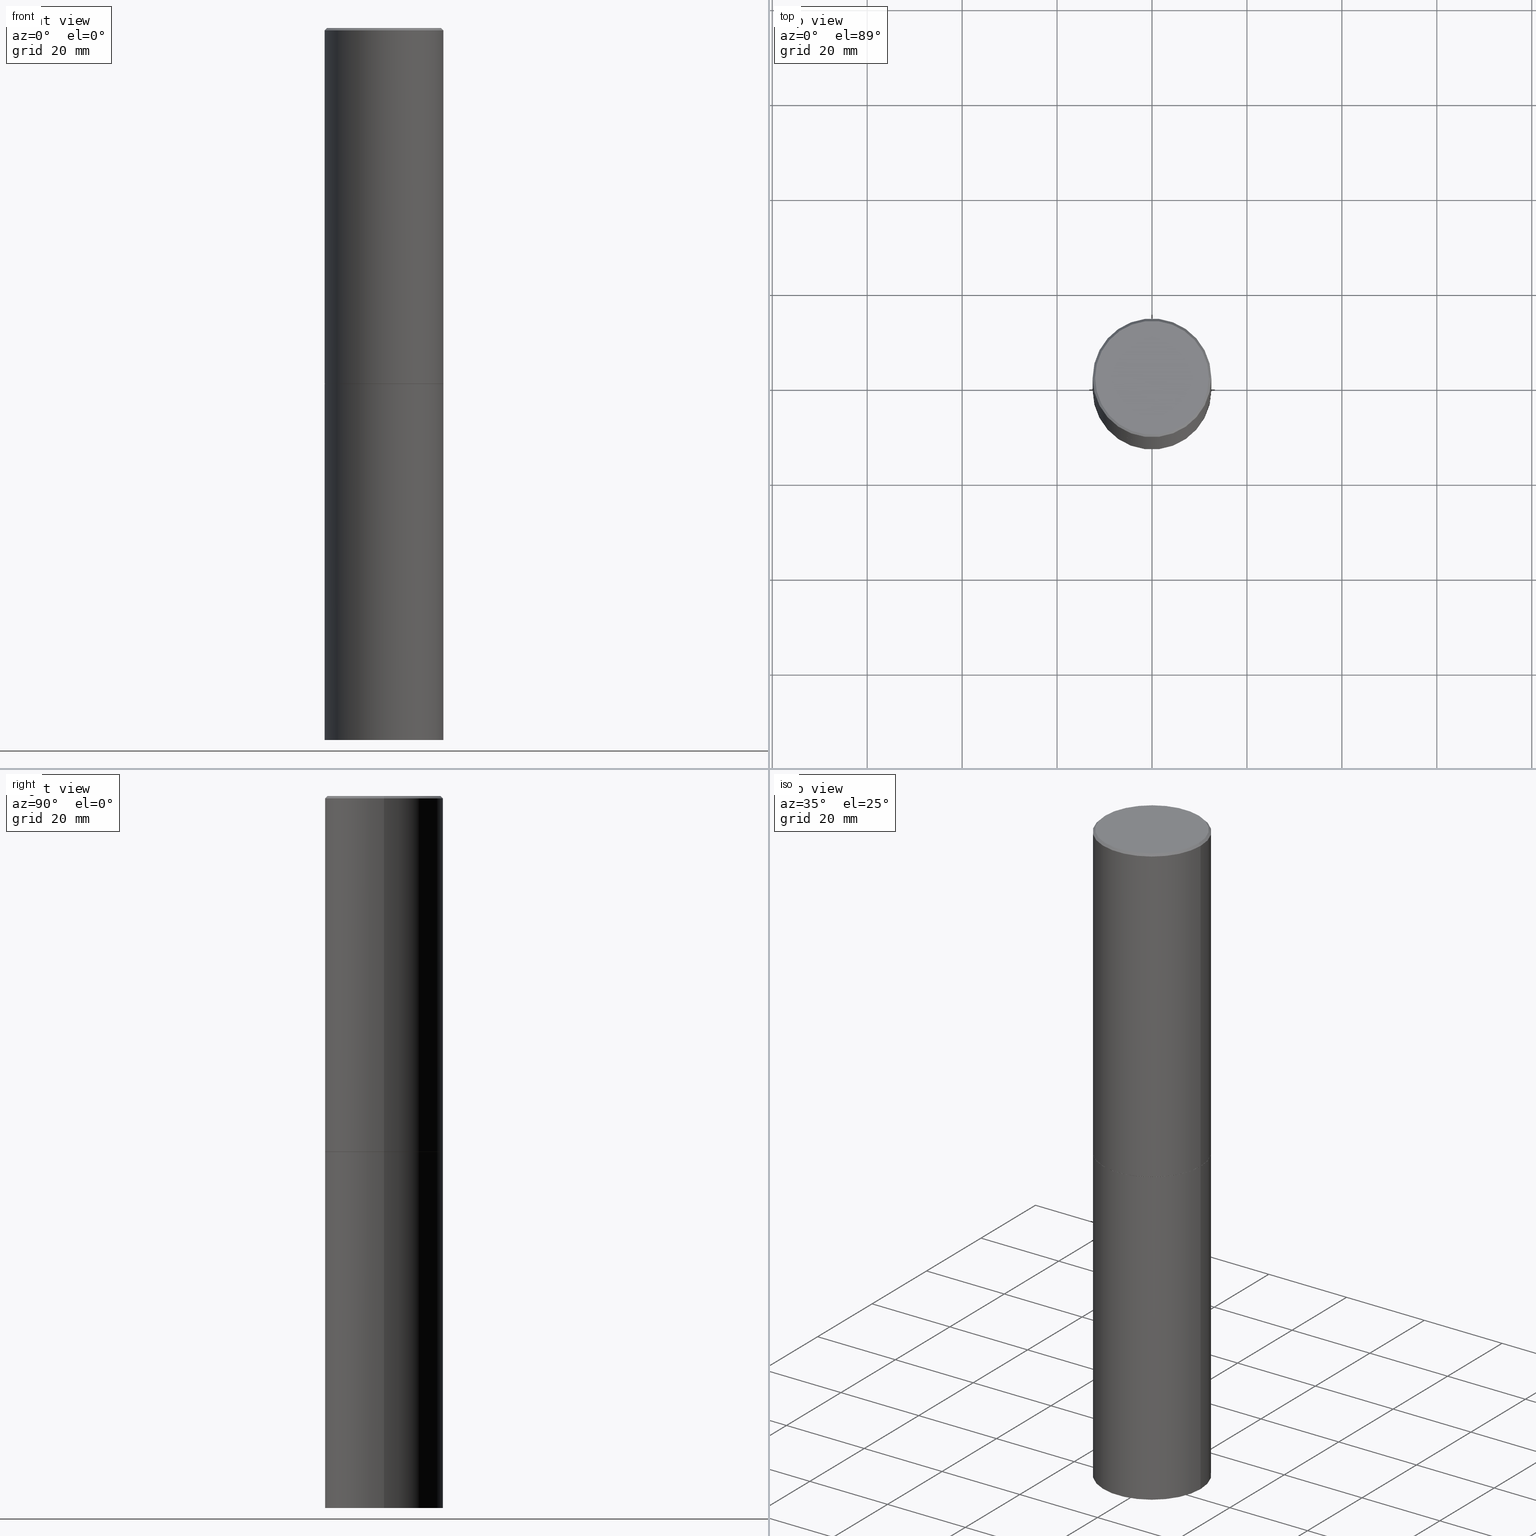
[diagram: canonical four-view strip — front | top / right | iso, engineering-drawing reading convention]
A machine part, canonical four-view strip (front | top / right | iso — engineering-drawing reading convention). The complete STEP part file that produces these views, byte-faithful:
ISO-10303-21;
HEADER;
FILE_DESCRIPTION (( 'STEP AP203' ),
    '1' );
FILE_NAME ('49491.STEP',
    '2024-02-28T23:58:51',
    ( '' ),
    ( '' ),
    'SwSTEP 2.0',
    'SolidWorks 2023',
    '' );
FILE_SCHEMA (( 'CONFIG_CONTROL_DESIGN' ));
ENDSEC;

DATA;
#1 = DATE_AND_TIME ( #118, #262 ) ;
#2 = LINE ( 'NONE', #115, #89 ) ;
#3 = EDGE_CURVE ( 'NONE', #273, #243, #59, .T. ) ;
#4 = AXIS2_PLACEMENT_3D ( 'NONE', #67, #230, #348 ) ;
#5 = CARTESIAN_POINT ( 'NONE',  ( -0.4911499999999999755, -6.819466302516424705E-15, -2.952700000000000546 ) ) ;
#6 = VERTEX_POINT ( 'NONE', #60 ) ;
#7 = ORIENTED_EDGE ( 'NONE', *, *, #357, .F. ) ;
#8 = AXIS2_PLACEMENT_3D ( 'NONE', #260, #353, #42 ) ;
#9 = CARTESIAN_POINT ( 'NONE',  ( 0.4921499999999999764, -1.374596203102545079E-14, -2.952700000000000102 ) ) ;
#10 = LOCAL_TIME ( 18, 58, 51.00000000000000000, #166 ) ;
#11 = DIRECTION ( 'NONE',  ( 2.445468806185136597E-29, -3.491481338843145583E-15, -1.000000000000000000 ) ) ;
#12 = MANIFOLD_SOLID_BREP ( 'Body-Move/Copy2[2]', #88 ) ;
#13 = PERSON ( 'UNSPECIFIED', 'UNSPECIFIED', 'UNSPECIFIED', ('UNSPECIFIED'), ('UNSPECIFIED'), ('UNSPECIFIED') ) ;
#14 = ADVANCED_FACE ( 'NONE', ( #87 ), #285, .T. ) ;
#15 = DIRECTION ( 'NONE',  ( 2.438088387897960049E-29, -3.491481338843145188E-15, -1.000000000000000000 ) ) ;
#16 = FACE_OUTER_BOUND ( 'NONE', #19, .T. ) ;
#17 = VECTOR ( 'NONE', #18, 39.37007874015748143 ) ;
#18 = DIRECTION ( 'NONE',  ( -2.445468806185136877E-29, 3.491481338843145188E-15, 1.000000000000000000 ) ) ;
#19 = EDGE_LOOP ( 'NONE', ( #170, #50, #286, #362 ) ) ;
#20 = EDGE_CURVE ( 'NONE', #224, #327, #103, .T. ) ;
#21 = LINE ( 'NONE', #198, #239 ) ;
#22 = ORIENTED_EDGE ( 'NONE', *, *, #351, .T. ) ;
#23 = AXIS2_PLACEMENT_3D ( 'NONE', #225, #119, #228 ) ;
#24 = APPLICATION_CONTEXT ( 'configuration controlled 3d designs of mechanical parts and assemblies' ) ;
#25 = PERSON_AND_ORGANIZATION_ROLE ( 'creator' ) ;
#26 = ORIENTED_EDGE ( 'NONE', *, *, #99, .F. ) ;
#27 = EDGE_CURVE ( 'NONE', #6, #298, #132, .T. ) ;
#28 = DATE_AND_TIME ( #274, #10 ) ;
#29 = EDGE_LOOP ( 'NONE', ( #150, #131 ) ) ;
#30 = ORIENTED_EDGE ( 'NONE', *, *, #27, .T. ) ;
#31 = CIRCLE ( 'NONE', #231, 0.4921499999999999764 ) ;
#32 = CONICAL_SURFACE ( 'NONE', #183, 0.4911499999999999755, 0.7853981633972775267 ) ;
#33 = CARTESIAN_POINT ( 'NONE',  ( -0.4921499999999999764, -1.690881473276754954E-15, -2.951700000000000212 ) ) ;
#34 = DIRECTION ( 'NONE',  ( -2.445468806185136597E-29, 3.491481338843145583E-15, 1.000000000000000000 ) ) ;
#35 = DIRECTION ( 'NONE',  ( 1.000000000000000000, -6.982962677686265922E-15, 0.000000000000000000 ) ) ;
#36 = DESIGN_CONTEXT ( 'detailed design', #24, 'design' ) ;
#37 = PERSON_AND_ORGANIZATION ( #13, #189 ) ;
#38 = CARTESIAN_POINT ( 'NONE',  ( 0.000000000000000000, 0.000000000000000000, 0.000000000000000000 ) ) ;
#39 = DIRECTION ( 'NONE',  ( 1.000000000000000000, -6.982962677686264344E-15, 0.000000000000000000 ) ) ;
#40 = DIRECTION ( 'NONE',  ( 1.000000000000000000, -6.982962677686265922E-15, 0.000000000000000000 ) ) ;
#41 = VECTOR ( 'NONE', #56, 39.37007874015748143 ) ;
#42 = DIRECTION ( 'NONE',  ( -1.000000000000000000, 6.982962677686265922E-15, 0.000000000000000000 ) ) ;
#43 = APPROVAL_PERSON_ORGANIZATION ( #81, #251, #52 ) ;
#44 = CARTESIAN_POINT ( 'NONE',  ( -0.4921499999999999764, 3.496936074043332897E-15, -2.420853904668951509E-29 ) ) ;
#45 = CYLINDRICAL_SURFACE ( 'NONE', #156, 0.4921499999999999764 ) ;
#46 = CARTESIAN_POINT ( 'NONE',  ( 0.4721499999999996255, -3.342703923013973396E-15, 8.537024980224040028E-18 ) ) ;
#47 = EDGE_LOOP ( 'NONE', ( #343, #22, #366, #199 ) ) ;
#48 = APPLICATION_PROTOCOL_DEFINITION ( 'international standard', 'config_control_design', 1994, #24 ) ;
#49 = PERSON_AND_ORGANIZATION ( #13, #189 ) ;
#50 = ORIENTED_EDGE ( 'NONE', *, *, #347, .T. ) ;
#51 = CIRCLE ( 'NONE', #294, 0.4921499999999999764 ) ;
#52 = APPROVAL_ROLE ( '' ) ;
#53 = ORIENTED_EDGE ( 'NONE', *, *, #312, .T. ) ;
#54 = CARTESIAN_POINT ( 'NONE',  ( 0.000000000000000000, 0.000000000000000000, 0.000000000000000000 ) ) ;
#55 = VERTEX_POINT ( 'NONE', #151 ) ;
#56 = DIRECTION ( 'NONE',  ( -0.7071067811864267805, 7.493145998869918709E-15, 0.7071067811866682540 ) ) ;
#57 = AXIS2_PLACEMENT_3D ( 'NONE', #72, #187, #71 ) ;
#58 = AXIS2_PLACEMENT_3D ( 'NONE', #180, #287, #40 ) ;
#59 = CIRCLE ( 'NONE', #202, 0.4921499999999999764 ) ;
#60 = CARTESIAN_POINT ( 'NONE',  ( -0.4921499999999996988, 3.366835455046430506E-15, -0.02000000000000010797 ) ) ;
#61 = ADVANCED_FACE ( 'NONE', ( #205 ), #338, .T. ) ;
#62 = CARTESIAN_POINT ( 'NONE',  ( 1.444171603492632270E-28, -2.061894304653819197E-14, -5.905499999999999972 ) ) ;
#63 = PERSON_AND_ORGANIZATION ( #13, #189 ) ;
#64 = DIRECTION ( 'NONE',  ( -2.445468806185136877E-29, 3.491481338843145188E-15, 1.000000000000000000 ) ) ;
#65 =( GEOMETRIC_REPRESENTATION_CONTEXT ( 3 ) GLOBAL_UNCERTAINTY_ASSIGNED_CONTEXT ( ( #264 ) ) GLOBAL_UNIT_ASSIGNED_CONTEXT ( ( #330, #360, #363 ) ) REPRESENTATION_CONTEXT ( 'NONE', 'WORKASPACE' ) );
#66 = DIRECTION ( 'NONE',  ( -2.445468806185136597E-29, 3.491481338843145583E-15, 1.000000000000000000 ) ) ;
#67 = CARTESIAN_POINT ( 'NONE',  ( 4.890937612370299433E-31, -6.982962677686328587E-17, -0.02000000000000010797 ) ) ;
#68 = DIRECTION ( 'NONE',  ( -2.445468806185136597E-29, 3.491481338843145583E-15, 1.000000000000000000 ) ) ;
#69 = CARTESIAN_POINT ( 'NONE',  ( 3.436665081823440533E-15, 0.4921499999999793262, -5.905500000000001748 ) ) ;
#70 = ADVANCED_FACE ( 'NONE', ( #252 ), #306, .T. ) ;
#71 = DIRECTION ( 'NONE',  ( 1.000000000000000000, -6.982962677686264344E-15, 0.000000000000000000 ) ) ;
#72 = CARTESIAN_POINT ( 'NONE',  ( 7.220735744022853640E-29, -1.030929694920215659E-14, -2.952700000000000546 ) ) ;
#73 = EDGE_LOOP ( 'NONE', ( #109, #110, #219, #301 ) ) ;
#74 = LOCAL_TIME ( 18, 58, 51.00000000000000000, #216 ) ;
#75 = AXIS2_PLACEMENT_3D ( 'NONE', #147, #313, #223 ) ;
#76 = PERSON_AND_ORGANIZATION_ROLE ( 'design_owner' ) ;
#77 = DIMENSIONAL_EXPONENTS ( 1.000000000000000000, 0.000000000000000000, 0.000000000000000000, 0.000000000000000000, 0.000000000000000000, 0.000000000000000000, 0.000000000000000000 ) ;
#78 = ORIENTED_EDGE ( 'NONE', *, *, #112, .T. ) ;
#79 = DATE_AND_TIME ( #328, #74 ) ;
#80 = EDGE_CURVE ( 'NONE', #327, #111, #144, .T. ) ;
#81 = PERSON_AND_ORGANIZATION ( #13, #189 ) ;
#82 = ORIENTED_EDGE ( 'NONE', *, *, #20, .F. ) ;
#83 = LINE ( 'NONE', #326, #17 ) ;
#84 = ORIENTED_EDGE ( 'NONE', *, *, #284, .F. ) ;
#85 = SHAPE_DEFINITION_REPRESENTATION ( #91, #236 ) ;
#86 = CARTESIAN_POINT ( 'NONE',  ( 4.890937612370299433E-31, -6.982962677686328587E-17, -0.02000000000000010797 ) ) ;
#87 = FACE_OUTER_BOUND ( 'NONE', #221, .T. ) ;
#88 = CLOSED_SHELL ( 'NONE', ( #193, #61, #185, #168, #70, #302, #229, #335 ) ) ;
#89 = VECTOR ( 'NONE', #90, 39.37007874015748143 ) ;
#90 = DIRECTION ( 'NONE',  ( -0.7071067811865465735, 2.468850131082246805E-15, -0.7071067811865484609 ) ) ;
#91 = PRODUCT_DEFINITION_SHAPE ( 'NONE', 'NONE',  #299 ) ;
#92 = CC_DESIGN_PERSON_AND_ORGANIZATION_ASSIGNMENT ( #37, #342, ( #272 ) ) ;
#93 = ORIENTED_EDGE ( 'NONE', *, *, #312, .F. ) ;
#94 = VERTEX_POINT ( 'NONE', #279 ) ;
#95 = CARTESIAN_POINT ( 'NONE',  ( 7.218290275216666916E-29, -1.030580546786331359E-14, -2.951700000000000212 ) ) ;
#96 = DIRECTION ( 'NONE',  ( 1.000000000000000000, -6.982962677686265922E-15, 4.876176775795935793E-29 ) ) ;
#97 = DIRECTION ( 'NONE',  ( -2.445468806185136597E-29, 3.491481338843145583E-15, 1.000000000000000000 ) ) ;
#98 = DIRECTION ( 'NONE',  ( -2.445468806185136597E-29, 3.491481338843145583E-15, 1.000000000000000000 ) ) ;
#99 = EDGE_CURVE ( 'NONE', #94, #6, #2, .T. ) ;
#100 = DIRECTION ( 'NONE',  ( 1.000000000000000000, -6.982962677686265922E-15, 4.876176775795935793E-29 ) ) ;
#101 = FACE_OUTER_BOUND ( 'NONE', #178, .T. ) ;
#102 = PERSON_AND_ORGANIZATION ( #13, #189 ) ;
#103 = CIRCLE ( 'NONE', #344, 0.4911499999999999755 ) ;
#104 = ORIENTED_EDGE ( 'NONE', *, *, #347, .F. ) ;
#105 = CC_DESIGN_APPROVAL ( #325, ( #272 ) ) ;
#106 = MECHANICAL_CONTEXT ( 'NONE', #194, 'mechanical' ) ;
#107 = VERTEX_POINT ( 'NONE', #340 ) ;
#108 = CALENDAR_DATE ( 2024, 28, 2 ) ;
#109 = ORIENTED_EDGE ( 'NONE', *, *, #351, .F. ) ;
#110 = ORIENTED_EDGE ( 'NONE', *, *, #210, .T. ) ;
#111 = VERTEX_POINT ( 'NONE', #33 ) ;
#112 = EDGE_CURVE ( 'NONE', #196, #298, #258, .T. ) ;
#113 = PERSON_AND_ORGANIZATION_ROLE ( 'design_supplier' ) ;
#114 = DIRECTION ( 'NONE',  ( -2.445468806185136597E-29, 3.491481338843145583E-15, 1.000000000000000000 ) ) ;
#115 = CARTESIAN_POINT ( 'NONE',  ( -0.4921499999999996988, 3.366835455046430506E-15, -0.02000000000000010797 ) ) ;
#116 = AXIS2_PLACEMENT_3D ( 'NONE', #214, #192, #163 ) ;
#117 = FACE_OUTER_BOUND ( 'NONE', #29, .T. ) ;
#118 = CALENDAR_DATE ( 2024, 28, 2 ) ;
#119 = DIRECTION ( 'NONE',  ( 2.438088387897960049E-29, -3.491481338843145188E-15, -1.000000000000000000 ) ) ;
#120 = LINE ( 'NONE', #44, #310 ) ;
#121 = CIRCLE ( 'NONE', #148, 0.4721499999999996255 ) ;
#122 = LOCAL_TIME ( 18, 58, 51.00000000000000000, #134 ) ;
#123 = CARTESIAN_POINT ( 'NONE',  ( 0.000000000000000000, 0.000000000000000000, 0.000000000000000000 ) ) ;
#124 = EDGE_CURVE ( 'NONE', #268, #298, #206, .T. ) ;
#125 = DIRECTION ( 'NONE',  ( 1.000000000000000000, -6.982962677686265922E-15, 0.000000000000000000 ) ) ;
#126 = PRODUCT_RELATED_PRODUCT_CATEGORY ( 'detail', '', ( #203 ) ) ;
#127 = CARTESIAN_POINT ( 'NONE',  ( 0.4921499999999996988, -3.446223716380120377E-15, -0.02000000000000010797 ) ) ;
#128 = APPROVAL_PERSON_ORGANIZATION ( #276, #325, #336 ) ;
#129 = CARTESIAN_POINT ( 'NONE',  ( -2.087702828670439639E-46, 2.980686340760894400E-32, 8.537024980200822558E-18 ) ) ;
#130 = PLANE ( 'NONE',  #346 ) ;
#131 = ORIENTED_EDGE ( 'NONE', *, *, #284, .T. ) ;
#132 = CIRCLE ( 'NONE', #339, 0.4921499999999996988 ) ;
#133 = ORIENTED_EDGE ( 'NONE', *, *, #145, .T. ) ;
#134 = COORDINATED_UNIVERSAL_TIME_OFFSET ( 5, 0, .BEHIND. ) ;
#135 = DIRECTION ( 'NONE',  ( 1.000000000000000000, 0.000000000000000000, 0.000000000000000000 ) ) ;
#136 = CC_DESIGN_PERSON_AND_ORGANIZATION_ASSIGNMENT ( #63, #308, ( #352 ) ) ;
#137 = ORIENTED_EDGE ( 'NONE', *, *, #197, .T. ) ;
#138 = EDGE_LOOP ( 'NONE', ( #82, #104 ) ) ;
#139 = AXIS2_PLACEMENT_3D ( 'NONE', #263, #68, #288 ) ;
#140 = CIRCLE ( 'NONE', #324, 0.4921499999999999764 ) ;
#141 = PERSON_AND_ORGANIZATION ( #13, #189 ) ;
#142 = CARTESIAN_POINT ( 'NONE',  ( 0.4921499999999996988, -3.446223716380120377E-15, -0.02000000000000010797 ) ) ;
#143 = MANIFOLD_SOLID_BREP ( 'Body-Move/Copy2[1]', #271 ) ;
#144 = LINE ( 'NONE', #5, #41 ) ;
#145 = EDGE_CURVE ( 'NONE', #55, #107, #140, .T. ) ;
#146 = DATE_AND_TIME ( #222, #213 ) ;
#147 = CARTESIAN_POINT ( 'NONE',  ( 0.000000000000000000, 0.000000000000000000, 0.000000000000000000 ) ) ;
#148 = AXIS2_PLACEMENT_3D ( 'NONE', #129, #240, #315 ) ;
#149 = COORDINATED_UNIVERSAL_TIME_OFFSET ( 5, 0, .BEHIND. ) ;
#150 = ORIENTED_EDGE ( 'NONE', *, *, #3, .T. ) ;
#151 = CARTESIAN_POINT ( 'NONE',  ( -0.4921499999999999764, -1.196718392382684217E-14, -5.905499999999999972 ) ) ;
#152 = CC_DESIGN_DATE_AND_TIME_ASSIGNMENT ( #1, #227, ( #272 ) ) ;
#153 = CARTESIAN_POINT ( 'NONE',  ( 4.890937612370299433E-31, -6.982962677686328587E-17, -0.02000000000000010797 ) ) ;
#154 = CIRCLE ( 'NONE', #4, 0.4921499999999996988 ) ;
#155 = DIRECTION ( 'NONE',  ( -2.445468806185136597E-29, 3.491481338843145583E-15, 1.000000000000000000 ) ) ;
#156 = AXIS2_PLACEMENT_3D ( 'NONE', #123, #97, #100 ) ;
#157 = ADVANCED_FACE ( 'NONE', ( #117 ), #176, .F. ) ;
#158 = DIRECTION ( 'NONE',  ( 1.000000000000000000, -6.982962677686265922E-15, 0.000000000000000000 ) ) ;
#159 = FACE_OUTER_BOUND ( 'NONE', #247, .T. ) ;
#160 = DIRECTION ( 'NONE',  ( -2.445468806185136597E-29, 3.491481338843145583E-15, 1.000000000000000000 ) ) ;
#161 = ORIENTED_EDGE ( 'NONE', *, *, #80, .T. ) ;
#162 = PERSON_AND_ORGANIZATION ( #13, #189 ) ;
#163 = DIRECTION ( 'NONE',  ( 1.000000000000000000, -6.982962677686264344E-15, 0.000000000000000000 ) ) ;
#164 = ORIENTED_EDGE ( 'NONE', *, *, #179, .F. ) ;
#165 = CC_DESIGN_PERSON_AND_ORGANIZATION_ASSIGNMENT ( #141, #113, ( #352 ) ) ;
#166 = COORDINATED_UNIVERSAL_TIME_OFFSET ( 5, 0, .BEHIND. ) ;
#167 = ORIENTED_EDGE ( 'NONE', *, *, #242, .F. ) ;
#168 = ADVANCED_FACE ( 'NONE', ( #317 ), #172, .T. ) ;
#169 = CARTESIAN_POINT ( 'NONE',  ( 3.297005828269567997E-15, 0.4721499999999996255, -1.644234401644689488E-15 ) ) ;
#170 = ORIENTED_EDGE ( 'NONE', *, *, #80, .F. ) ;
#171 = ORIENTED_EDGE ( 'NONE', *, *, #145, .F. ) ;
#172 = CONICAL_SURFACE ( 'NONE', #8, 0.4921499999999996988, 0.7853981633974469467 ) ;
#173 = DIRECTION ( 'NONE',  ( -2.445468806185136597E-29, 3.491481338843145583E-15, 1.000000000000000000 ) ) ;
#174 = DIRECTION ( 'NONE',  ( -2.445468806185136597E-29, 3.491481338843145583E-15, 1.000000000000000000 ) ) ;
#175 = APPROVAL_STATUS ( 'not_yet_approved' ) ;
#176 = PLANE ( 'NONE',  #23 ) ;
#177 = CIRCLE ( 'NONE', #58, 0.4921499999999999764 ) ;
#178 = EDGE_LOOP ( 'NONE', ( #275, #337 ) ) ;
#179 = EDGE_CURVE ( 'NONE', #224, #268, #293, .T. ) ;
#180 = CARTESIAN_POINT ( 'NONE',  ( 1.444171603492632270E-28, -2.061894304653819197E-14, -5.905499999999999972 ) ) ;
#181 = CARTESIAN_POINT ( 'NONE',  ( 7.218290275216666916E-29, -1.030580546786331359E-14, -2.951700000000000212 ) ) ;
#182 = VECTOR ( 'NONE', #204, 39.37007874015748143 ) ;
#183 = AXIS2_PLACEMENT_3D ( 'NONE', #350, #98, #207 ) ;
#184 = CARTESIAN_POINT ( 'NONE',  ( 0.4911499999999999755, -1.373897906834776478E-14, -2.952700000000000546 ) ) ;
#185 = ADVANCED_FACE ( 'NONE', ( #320 ), #261, .T. ) ;
#186 = CARTESIAN_POINT ( 'NONE',  ( 7.220735744022853640E-29, -1.030929694920215659E-14, -2.952700000000000546 ) ) ;
#187 = DIRECTION ( 'NONE',  ( -2.445468806185136597E-29, 3.491481338843145583E-15, 1.000000000000000000 ) ) ;
#188 = CIRCLE ( 'NONE', #256, 0.4921499999999999764 ) ;
#189 = ORGANIZATION ( 'UNSPECIFIED', 'UNSPECIFIED', '' ) ;
#190 = AXIS2_PLACEMENT_3D ( 'NONE', #69, #15, #212 ) ;
#191 = EDGE_LOOP ( 'NONE', ( #53, #329, #359, #7 ) ) ;
#192 = DIRECTION ( 'NONE',  ( -2.445468806185136597E-29, 3.491481338843145583E-15, 1.000000000000000000 ) ) ;
#193 = ADVANCED_FACE ( 'NONE', ( #316 ), #296, .T. ) ;
#194 = APPLICATION_CONTEXT ( 'configuration controlled 3d designs of mechanical parts and assemblies' ) ;
#195 = APPROVAL_STATUS ( 'not_yet_approved' ) ;
#196 = VERTEX_POINT ( 'NONE', #46 ) ;
#197 = EDGE_CURVE ( 'NONE', #298, #6, #154, .T. ) ;
#198 = CARTESIAN_POINT ( 'NONE',  ( 0.4921499999999999764, -3.436665081823295777E-15, 2.399810400207969603E-29 ) ) ;
#199 = ORIENTED_EDGE ( 'NONE', *, *, #124, .F. ) ;
#200 = EDGE_LOOP ( 'NONE', ( #277, #78, #137, #26 ) ) ;
#201 = CARTESIAN_POINT ( 'NONE',  ( 0.000000000000000000, 0.000000000000000000, 0.000000000000000000 ) ) ;
#202 = AXIS2_PLACEMENT_3D ( 'NONE', #253, #314, #35 ) ;
#203 = PRODUCT ( '49491', '49491', '', ( #106 ) ) ;
#204 = DIRECTION ( 'NONE',  ( 0.7071067811865465735, -7.319954787623252890E-15, -0.7071067811865484609 ) ) ;
#205 = FACE_OUTER_BOUND ( 'NONE', #47, .T. ) ;
#206 = LINE ( 'NONE', #311, #280 ) ;
#207 = DIRECTION ( 'NONE',  ( 1.000000000000000000, -6.982962677686264344E-15, 0.000000000000000000 ) ) ;
#208 = DIRECTION ( 'NONE',  ( -1.000000000000000000, 6.982962677686265922E-15, 0.000000000000000000 ) ) ;
#209 = CARTESIAN_POINT ( 'NONE',  ( 0.4921499999999999764, -1.374247054968660936E-14, -2.951700000000000212 ) ) ;
#210 = EDGE_CURVE ( 'NONE', #111, #268, #51, .T. ) ;
#211 = DIRECTION ( 'NONE',  ( -2.438088387897960049E-29, 3.491481338843145188E-15, 1.000000000000000000 ) ) ;
#212 = DIRECTION ( 'NONE',  ( -1.000000000000000000, 6.982962677686265922E-15, -4.876176775795935793E-29 ) ) ;
#213 = LOCAL_TIME ( 18, 58, 51.00000000000000000, #149 ) ;
#214 = CARTESIAN_POINT ( 'NONE',  ( 7.220735744022853640E-29, -1.030929694920215659E-14, -2.952700000000000546 ) ) ;
#215 = ORIENTED_EDGE ( 'NONE', *, *, #112, .F. ) ;
#216 = COORDINATED_UNIVERSAL_TIME_OFFSET ( 5, 0, .BEHIND. ) ;
#217 = EDGE_LOOP ( 'NONE', ( #215, #355, #309, #30 ) ) ;
#218 = DATE_TIME_ROLE ( 'creation_date' ) ;
#219 = ORIENTED_EDGE ( 'NONE', *, *, #124, .T. ) ;
#220 = APPROVAL_DATE_TIME ( #146, #325 ) ;
#221 = EDGE_LOOP ( 'NONE', ( #167, #133, #365, #84 ) ) ;
#222 = CALENDAR_DATE ( 2024, 28, 2 ) ;
#223 = DIRECTION ( 'NONE',  ( 1.000000000000000000, -6.982962677686265922E-15, 4.876176775795935793E-29 ) ) ;
#224 = VERTEX_POINT ( 'NONE', #184 ) ;
#225 = CARTESIAN_POINT ( 'NONE',  ( 3.436665081823367957E-15, 0.4921499999999896513, -2.952700000000001435 ) ) ;
#226 = EDGE_CURVE ( 'NONE', #196, #94, #244, .T. ) ;
#227 = DATE_TIME_ROLE ( 'classification_date' ) ;
#228 = DIRECTION ( 'NONE',  ( -1.000000000000000000, 6.982962677686265922E-15, -4.876176775795935793E-29 ) ) ;
#229 = ADVANCED_FACE ( 'NONE', ( #238 ), #265, .F. ) ;
#230 = DIRECTION ( 'NONE',  ( -2.445468806185136597E-29, 3.491481338843145583E-15, 1.000000000000000000 ) ) ;
#231 = AXIS2_PLACEMENT_3D ( 'NONE', #345, #234, #158 ) ;
#232 = AXIS2_PLACEMENT_3D ( 'NONE', #54, #241, #135 ) ;
#233 = AXIS2_PLACEMENT_3D ( 'NONE', #201, #66, #341 ) ;
#234 = DIRECTION ( 'NONE',  ( -2.445468806185136597E-29, 3.491481338843145583E-15, 1.000000000000000000 ) ) ;
#235 = DIRECTION ( 'NONE',  ( -2.445468806185136877E-29, 3.491481338843145188E-15, 1.000000000000000000 ) ) ;
#236 = ADVANCED_BREP_SHAPE_REPRESENTATION ( '49491', ( #143, #12, #232 ), #65 ) ;
#237 = EDGE_CURVE ( 'NONE', #268, #111, #188, .T. ) ;
#238 = FACE_OUTER_BOUND ( 'NONE', #138, .T. ) ;
#239 = VECTOR ( 'NONE', #245, 39.37007874015748143 ) ;
#240 = DIRECTION ( 'NONE',  ( -2.445468806185136597E-29, 3.491481338843145583E-15, 1.000000000000000000 ) ) ;
#241 = DIRECTION ( 'NONE',  ( 0.000000000000000000, 0.000000000000000000, 1.000000000000000000 ) ) ;
#242 = EDGE_CURVE ( 'NONE', #55, #243, #120, .T. ) ;
#243 = VERTEX_POINT ( 'NONE', #291 ) ;
#244 = CIRCLE ( 'NONE', #139, 0.4721499999999996255 ) ;
#245 = DIRECTION ( 'NONE',  ( -2.445468806185136877E-29, 3.491481338843145188E-15, 1.000000000000000000 ) ) ;
#246 = LENGTH_MEASURE_WITH_UNIT ( LENGTH_MEASURE( 0.02539999999999999897 ), #304 );
#247 = EDGE_LOOP ( 'NONE', ( #93, #171 ) ) ;
#248 = COORDINATED_UNIVERSAL_TIME_OFFSET ( 5, 0, .BEHIND. ) ;
#249 = APPROVAL_PERSON_ORGANIZATION ( #162, #270, #358 ) ;
#250 = EDGE_LOOP ( 'NONE', ( #334, #161, #331, #164 ) ) ;
#251 = APPROVAL ( #195, 'UNSPECIFIED' ) ;
#252 = FACE_OUTER_BOUND ( 'NONE', #73, .T. ) ;
#253 = CARTESIAN_POINT ( 'NONE',  ( 7.220735744022852519E-29, -1.030929694920215502E-14, -2.952700000000000102 ) ) ;
#254 = ADVANCED_FACE ( 'NONE', ( #349 ), #45, .T. ) ;
#255 = DIRECTION ( 'NONE',  ( 1.000000000000000000, -6.982962677686265922E-15, 0.000000000000000000 ) ) ;
#256 = AXIS2_PLACEMENT_3D ( 'NONE', #181, #155, #125 ) ;
#257 = SECURITY_CLASSIFICATION_LEVEL ( 'unclassified' ) ;
#258 = LINE ( 'NONE', #142, #182 ) ;
#259 = DIRECTION ( 'NONE',  ( 1.000000000000000000, -6.982962677686265922E-15, 4.876176775795935793E-29 ) ) ;
#260 = CARTESIAN_POINT ( 'NONE',  ( 4.890937612370299433E-31, -6.982962677686328587E-17, -0.02000000000000010797 ) ) ;
#261 = CONICAL_SURFACE ( 'NONE', #318, 0.4921499999999996988, 0.7853981633974469467 ) ;
#262 = LOCAL_TIME ( 18, 58, 51.00000000000000000, #248 ) ;
#263 = CARTESIAN_POINT ( 'NONE',  ( -2.087702828670439639E-46, 2.980686340760894400E-32, 8.537024980200822558E-18 ) ) ;
#264 = UNCERTAINTY_MEASURE_WITH_UNIT (LENGTH_MEASURE( 1.000000000000000082E-05 ), #330, 'distance_accuracy_value', 'NONE');
#265 = PLANE ( 'NONE',  #356 ) ;
#266 = PLANE ( 'NONE',  #190 ) ;
#267 = DIRECTION ( 'NONE',  ( 1.000000000000000000, -6.982962677686265922E-15, 0.000000000000000000 ) ) ;
#268 = VERTEX_POINT ( 'NONE', #209 ) ;
#269 = APPROVAL_STATUS ( 'not_yet_approved' ) ;
#270 = APPROVAL ( #269, 'UNSPECIFIED' ) ;
#271 = CLOSED_SHELL ( 'NONE', ( #254, #292, #157, #14 ) ) ;
#272 = SECURITY_CLASSIFICATION ( '', '', #257 ) ;
#273 = VERTEX_POINT ( 'NONE', #9 ) ;
#274 = CALENDAR_DATE ( 2024, 28, 2 ) ;
#275 = ORIENTED_EDGE ( 'NONE', *, *, #305, .T. ) ;
#276 = PERSON_AND_ORGANIZATION ( #13, #189 ) ;
#277 = ORIENTED_EDGE ( 'NONE', *, *, #226, .F. ) ;
#278 = CC_DESIGN_APPROVAL ( #270, ( #299 ) ) ;
#279 = CARTESIAN_POINT ( 'NONE',  ( -0.4721499999999996255, 3.331920641657999252E-15, 8.537024980177643606E-18 ) ) ;
#280 = VECTOR ( 'NONE', #64, 39.37007874015748143 ) ;
#281 = DIRECTION ( 'NONE',  ( 1.000000000000000000, -6.982962677686265922E-15, 0.000000000000000000 ) ) ;
#282 = CC_DESIGN_PERSON_AND_ORGANIZATION_ASSIGNMENT ( #102, #76, ( #203 ) ) ;
#283 = CARTESIAN_POINT ( 'NONE',  ( 7.220735744022853640E-29, -1.030929694920215659E-14, -2.952700000000000546 ) ) ;
#284 = EDGE_CURVE ( 'NONE', #243, #273, #31, .T. ) ;
#285 = CYLINDRICAL_SURFACE ( 'NONE', #233, 0.4921499999999999764 ) ;
#286 = ORIENTED_EDGE ( 'NONE', *, *, #179, .T. ) ;
#287 = DIRECTION ( 'NONE',  ( -2.445468806185136597E-29, 3.491481338843145583E-15, 1.000000000000000000 ) ) ;
#288 = DIRECTION ( 'NONE',  ( 1.000000000000000000, -6.982962677686265922E-15, 4.876006802227162976E-29 ) ) ;
#289 = DIRECTION ( 'NONE',  ( 0.7071067811864267805, -2.468850131080992517E-15, 0.7071067811866682540 ) ) ;
#290 = CC_DESIGN_DATE_AND_TIME_ASSIGNMENT ( #303, #218, ( #299 ) ) ;
#291 = CARTESIAN_POINT ( 'NONE',  ( -0.4921499999999999764, -1.196718392382684217E-14, -2.952700000000000102 ) ) ;
#292 = ADVANCED_FACE ( 'NONE', ( #159 ), #266, .T. ) ;
#293 = LINE ( 'NONE', #319, #322 ) ;
#294 = AXIS2_PLACEMENT_3D ( 'NONE', #95, #160, #267 ) ;
#295 = CIRCLE ( 'NONE', #116, 0.4911499999999999755 ) ;
#296 = CONICAL_SURFACE ( 'NONE', #57, 0.4911499999999999755, 0.7853981633972775267 ) ;
#297 = APPLICATION_PROTOCOL_DEFINITION ( 'international standard', 'config_control_design', 1994, #194 ) ;
#298 = VERTEX_POINT ( 'NONE', #127 ) ;
#299 = PRODUCT_DEFINITION ( 'UNKNOWN', '', #352, #36 ) ;
#300 = APPROVAL_DATE_TIME ( #79, #270 ) ;
#301 = ORIENTED_EDGE ( 'NONE', *, *, #27, .F. ) ;
#302 = ADVANCED_FACE ( 'NONE', ( #16 ), #32, .T. ) ;
#303 = DATE_AND_TIME ( #108, #122 ) ;
#304 =( LENGTH_UNIT ( ) NAMED_UNIT ( * ) SI_UNIT ( $, .METRE. ) );
#305 = EDGE_CURVE ( 'NONE', #94, #196, #121, .T. ) ;
#306 = CYLINDRICAL_SURFACE ( 'NONE', #75, 0.4921499999999998098 ) ;
#307 = AXIS2_PLACEMENT_3D ( 'NONE', #38, #34, #259 ) ;
#308 = PERSON_AND_ORGANIZATION_ROLE ( 'creator' ) ;
#309 = ORIENTED_EDGE ( 'NONE', *, *, #99, .T. ) ;
#310 = VECTOR ( 'NONE', #235, 39.37007874015748143 ) ;
#311 = CARTESIAN_POINT ( 'NONE',  ( 0.4921499999999998098, -3.436665081823294593E-15, 2.399810400207968762E-29 ) ) ;
#312 = EDGE_CURVE ( 'NONE', #107, #55, #177, .T. ) ;
#313 = DIRECTION ( 'NONE',  ( -2.445468806185136597E-29, 3.491481338843145583E-15, 1.000000000000000000 ) ) ;
#314 = DIRECTION ( 'NONE',  ( -2.445468806185136597E-29, 3.491481338843145583E-15, 1.000000000000000000 ) ) ;
#315 = DIRECTION ( 'NONE',  ( 1.000000000000000000, -6.982962677686265922E-15, 4.876006802227162976E-29 ) ) ;
#316 = FACE_OUTER_BOUND ( 'NONE', #250, .T. ) ;
#317 = FACE_OUTER_BOUND ( 'NONE', #217, .T. ) ;
#318 = AXIS2_PLACEMENT_3D ( 'NONE', #153, #11, #208 ) ;
#319 = CARTESIAN_POINT ( 'NONE',  ( 0.4911499999999999755, -1.373897906834776478E-14, -2.952700000000000546 ) ) ;
#320 = FACE_OUTER_BOUND ( 'NONE', #200, .T. ) ;
#321 = DIRECTION ( 'NONE',  ( -1.000000000000000000, 6.982962677686265922E-15, -4.876176775795935793E-29 ) ) ;
#322 = VECTOR ( 'NONE', #289, 39.37007874015748143 ) ;
#323 = CC_DESIGN_SECURITY_CLASSIFICATION ( #272, ( #352 ) ) ;
#324 = AXIS2_PLACEMENT_3D ( 'NONE', #62, #174, #255 ) ;
#325 = APPROVAL ( #175, 'UNSPECIFIED' ) ;
#326 = CARTESIAN_POINT ( 'NONE',  ( -0.4921499999999998098, 3.496936074043331714E-15, -2.420853904668950949E-29 ) ) ;
#327 = VERTEX_POINT ( 'NONE', #354 ) ;
#328 = CALENDAR_DATE ( 2024, 28, 2 ) ;
#329 = ORIENTED_EDGE ( 'NONE', *, *, #242, .T. ) ;
#330 =( CONVERSION_BASED_UNIT ( 'INCH', #246 ) LENGTH_UNIT ( ) NAMED_UNIT ( #77 ) );
#331 = ORIENTED_EDGE ( 'NONE', *, *, #237, .F. ) ;
#332 = CC_DESIGN_APPROVAL ( #251, ( #352 ) ) ;
#333 = DIRECTION ( 'NONE',  ( 2.438088387897960049E-29, -3.491481338843145188E-15, -1.000000000000000000 ) ) ;
#334 = ORIENTED_EDGE ( 'NONE', *, *, #20, .T. ) ;
#335 = ADVANCED_FACE ( 'NONE', ( #101 ), #130, .F. ) ;
#336 = APPROVAL_ROLE ( '' ) ;
#337 = ORIENTED_EDGE ( 'NONE', *, *, #226, .T. ) ;
#338 = CYLINDRICAL_SURFACE ( 'NONE', #307, 0.4921499999999998098 ) ;
#339 = AXIS2_PLACEMENT_3D ( 'NONE', #86, #173, #281 ) ;
#340 = CARTESIAN_POINT ( 'NONE',  ( 0.4921499999999999764, -2.405560812836148932E-14, -5.905499999999999972 ) ) ;
#341 = DIRECTION ( 'NONE',  ( 1.000000000000000000, -6.982962677686265922E-15, 4.876176775795935793E-29 ) ) ;
#342 = PERSON_AND_ORGANIZATION_ROLE ( 'classification_officer' ) ;
#343 = ORIENTED_EDGE ( 'NONE', *, *, #237, .T. ) ;
#344 = AXIS2_PLACEMENT_3D ( 'NONE', #283, #114, #39 ) ;
#345 = CARTESIAN_POINT ( 'NONE',  ( 7.220735744022852519E-29, -1.030929694920215502E-14, -2.952700000000000102 ) ) ;
#346 = AXIS2_PLACEMENT_3D ( 'NONE', #169, #333, #321 ) ;
#347 = EDGE_CURVE ( 'NONE', #327, #224, #295, .T. ) ;
#348 = DIRECTION ( 'NONE',  ( 1.000000000000000000, -6.982962677686265922E-15, 0.000000000000000000 ) ) ;
#349 = FACE_OUTER_BOUND ( 'NONE', #191, .T. ) ;
#350 = CARTESIAN_POINT ( 'NONE',  ( 7.220735744022853640E-29, -1.030929694920215659E-14, -2.952700000000000546 ) ) ;
#351 = EDGE_CURVE ( 'NONE', #111, #6, #83, .T. ) ;
#352 = PRODUCT_DEFINITION_FORMATION_WITH_SPECIFIED_SOURCE ( 'ANY', '', #203, .NOT_KNOWN. ) ;
#353 = DIRECTION ( 'NONE',  ( 2.445468806185136597E-29, -3.491481338843145583E-15, -1.000000000000000000 ) ) ;
#354 = CARTESIAN_POINT ( 'NONE',  ( -0.4911499999999999755, -6.814167848168202303E-15, -2.952700000000000546 ) ) ;
#355 = ORIENTED_EDGE ( 'NONE', *, *, #305, .F. ) ;
#356 = AXIS2_PLACEMENT_3D ( 'NONE', #186, #211, #96 ) ;
#357 = EDGE_CURVE ( 'NONE', #107, #273, #21, .T. ) ;
#358 = APPROVAL_ROLE ( '' ) ;
#359 = ORIENTED_EDGE ( 'NONE', *, *, #3, .F. ) ;
#360 =( NAMED_UNIT ( * ) PLANE_ANGLE_UNIT ( ) SI_UNIT ( $, .RADIAN. ) );
#361 = CC_DESIGN_PERSON_AND_ORGANIZATION_ASSIGNMENT ( #49, #25, ( #299 ) ) ;
#362 = ORIENTED_EDGE ( 'NONE', *, *, #210, .F. ) ;
#363 =( NAMED_UNIT ( * ) SI_UNIT ( $, .STERADIAN. ) SOLID_ANGLE_UNIT ( ) );
#364 = APPROVAL_DATE_TIME ( #28, #251 ) ;
#365 = ORIENTED_EDGE ( 'NONE', *, *, #357, .T. ) ;
#366 = ORIENTED_EDGE ( 'NONE', *, *, #197, .F. ) ;
ENDSEC;
END-ISO-10303-21;
